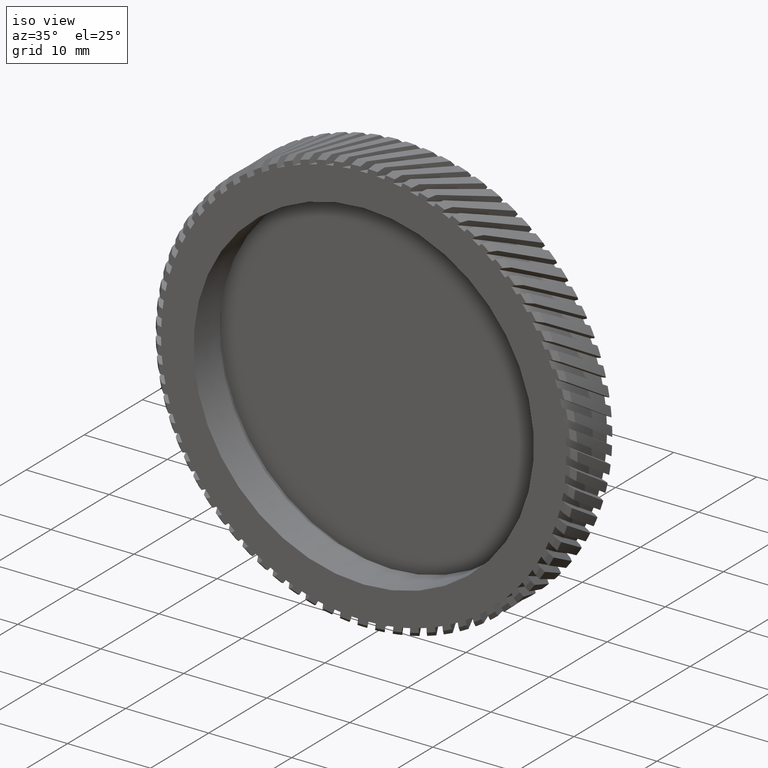
[diagram: clean part render]
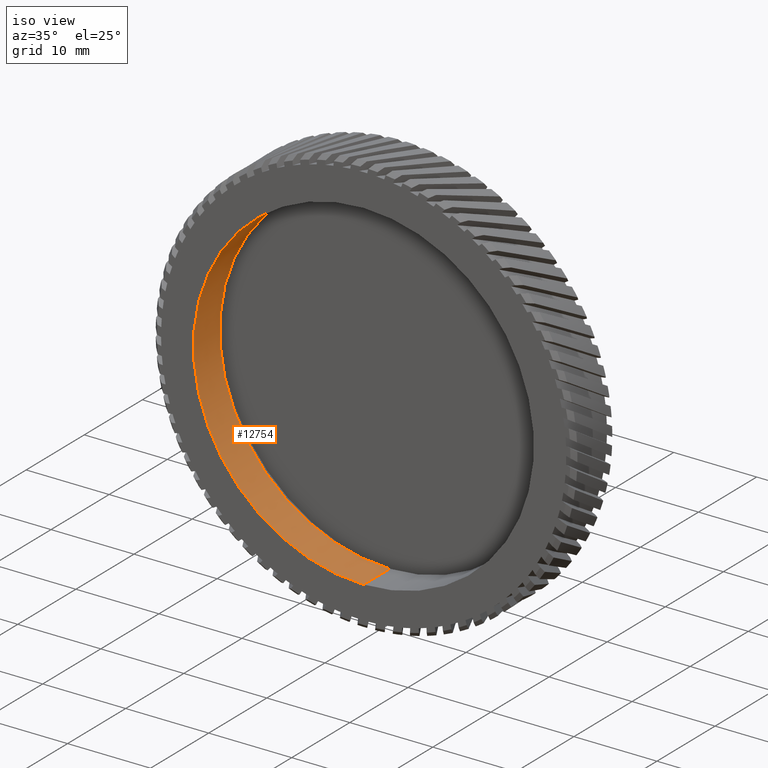
[diagram: same view with one face highlighted and labeled with its STEP entity id]
A machine part, iso view. The second image highlights one B-rep face of the part: STEP entity #12754.
In plain terms, the highlighted cylindrical surface (partial cylindrical patch) has radius 20.5 mm, axis along (-0, 1, -0).
Its self-contained STEP definition (entity closure, byte-faithful):
#375 = EDGE_CURVE ( 'NONE', #10164, #14461, #7659, .T. ) ;
#672 = CARTESIAN_POINT ( 'NONE',  ( 0.0000000000000000000, -8.830884482231917700, 0.0000000000000000000 ) ) ;
#1399 = EDGE_CURVE ( 'NONE', #2381, #5469, #8613, .T. ) ;
#1747 = EDGE_CURVE ( 'NONE', #14461, #5469, #1891, .T. ) ;
#1782 = DIRECTION ( 'NONE',  ( 0.0000000000000000000, 0.0000000000000000000, 1.000000000000000000 ) ) ;
#1891 = LINE ( 'NONE', #5910, #13707 ) ;
#2236 = DIRECTION ( 'NONE',  ( -0.0000000000000000000, 1.000000000000000000, -0.0000000000000000000 ) ) ;
#2381 = VERTEX_POINT ( 'NONE', #13790 ) ;
#4409 = FACE_OUTER_BOUND ( 'NONE', #14184, .T. ) ;
#4618 = ORIENTED_EDGE ( 'NONE', *, *, #375, .F. ) ;
#4800 = DIRECTION ( 'NONE',  ( -0.0000000000000000000, 1.000000000000000000, -0.0000000000000000000 ) ) ;
#5396 = DIRECTION ( 'NONE',  ( 0.0000000000000000000, 0.0000000000000000000, 1.000000000000000000 ) ) ;
#5469 = VERTEX_POINT ( 'NONE', #9768 ) ;
#5910 = CARTESIAN_POINT ( 'NONE',  ( 0.0000000000000000000, 46.02073106022621100, 20.50000000000000700 ) ) ;
#6279 = CARTESIAN_POINT ( 'NONE',  ( 2.510525938252074900E-015, -13.33088448223191600, -20.50000000000000700 ) ) ;
#7659 = CIRCLE ( 'NONE', #14637, 20.50000000000000700 ) ;
#8525 = CARTESIAN_POINT ( 'NONE',  ( 2.510525938252074900E-015, 46.02073106022621100, -20.50000000000000700 ) ) ;
#8613 = CIRCLE ( 'NONE', #8632, 20.50000000000000700 ) ;
#8632 = AXIS2_PLACEMENT_3D ( 'NONE', #672, #11825, #1782 ) ;
#9050 = DIRECTION ( 'NONE',  ( -0.0000000000000000000, 1.000000000000000000, -0.0000000000000000000 ) ) ;
#9715 = VECTOR ( 'NONE', #2236, 1000.000000000000000 ) ;
#9768 = CARTESIAN_POINT ( 'NONE',  ( 0.0000000000000000000, -8.830884482231917700, 20.50000000000000700 ) ) ;
#10164 = VERTEX_POINT ( 'NONE', #6279 ) ;
#10688 = CYLINDRICAL_SURFACE ( 'NONE', #16239, 20.50000000000000700 ) ;
#10892 = LINE ( 'NONE', #8525, #9715 ) ;
#10910 = ORIENTED_EDGE ( 'NONE', *, *, #1399, .T. ) ;
#11131 = DIRECTION ( 'NONE',  ( 0.0000000000000000000, 0.0000000000000000000, 1.000000000000000000 ) ) ;
#11601 = CARTESIAN_POINT ( 'NONE',  ( 0.0000000000000000000, 46.02073106022621100, 0.0000000000000000000 ) ) ;
#11825 = DIRECTION ( 'NONE',  ( -0.0000000000000000000, 1.000000000000000000, -0.0000000000000000000 ) ) ;
#12015 = CARTESIAN_POINT ( 'NONE',  ( 0.0000000000000000000, -13.33088448223191600, 20.50000000000000700 ) ) ;
#12754 = ADVANCED_FACE ( 'NONE', ( #4409 ), #10688, .F. ) ;
#12999 = EDGE_CURVE ( 'NONE', #10164, #2381, #10892, .T. ) ;
#13707 = VECTOR ( 'NONE', #4800, 1000.000000000000000 ) ;
#13790 = CARTESIAN_POINT ( 'NONE',  ( 2.510525938252074900E-015, -8.830884482231917700, -20.50000000000000700 ) ) ;
#14184 = EDGE_LOOP ( 'NONE', ( #4618, #14379, #10910, #15032 ) ) ;
#14379 = ORIENTED_EDGE ( 'NONE', *, *, #12999, .T. ) ;
#14461 = VERTEX_POINT ( 'NONE', #12015 ) ;
#14637 = AXIS2_PLACEMENT_3D ( 'NONE', #16110, #14781, #11131 ) ;
#14781 = DIRECTION ( 'NONE',  ( -0.0000000000000000000, 1.000000000000000000, -0.0000000000000000000 ) ) ;
#15032 = ORIENTED_EDGE ( 'NONE', *, *, #1747, .F. ) ;
#16110 = CARTESIAN_POINT ( 'NONE',  ( 0.0000000000000000000, -13.33088448223191600, 0.0000000000000000000 ) ) ;
#16239 = AXIS2_PLACEMENT_3D ( 'NONE', #11601, #9050, #5396 ) ;